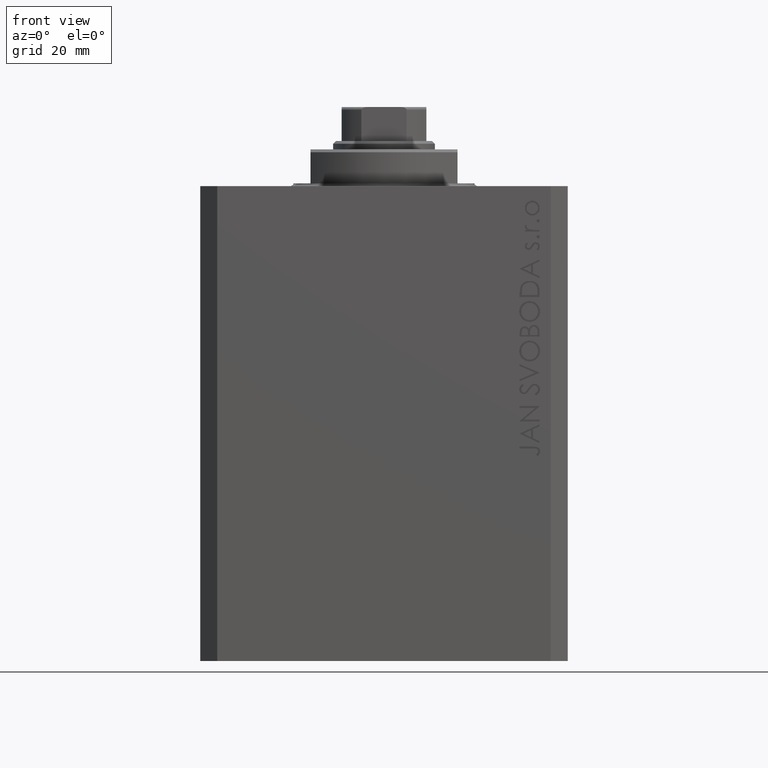
[diagram: clean part render]
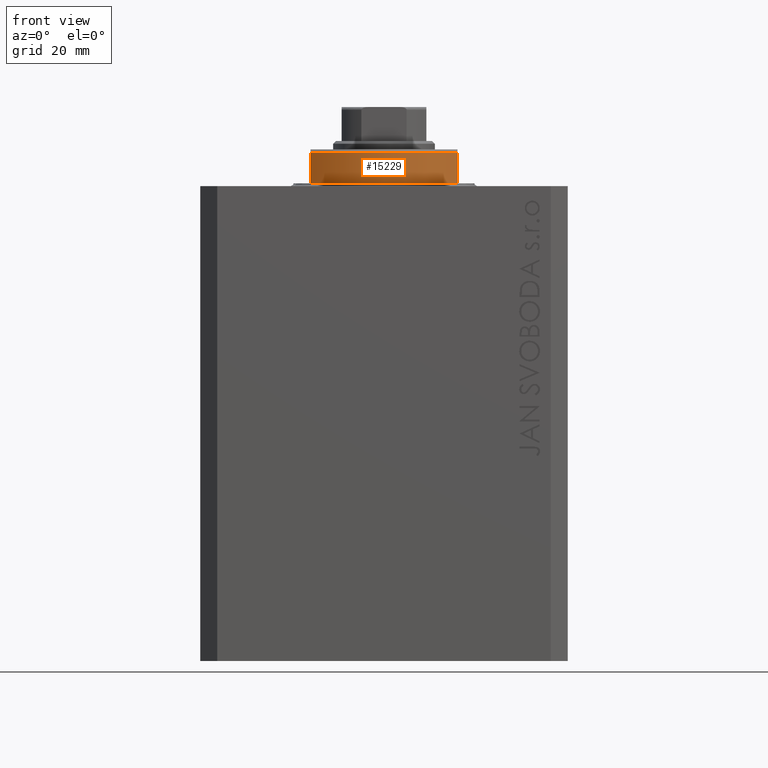
[diagram: same view with one face highlighted and labeled with its STEP entity id]
A machine part, front view. The second image highlights one B-rep face of the part: STEP entity #15229.
In plain terms, the highlighted cylindrical surface (partial cylindrical patch) has radius 16 mm, axis along (0, 0, -1).
Its self-contained STEP definition (entity closure, byte-faithful):
#2148 = CARTESIAN_POINT ( 'NONE',  ( -13.00000000000000000, -9.327379053088815652, -6.000000000000023981 ) ) ;
#5350 = ORIENTED_EDGE ( 'NONE', *, *, #15858, .T. ) ;
#6260 = VECTOR ( 'NONE', #41295, 1000.000000000000000 ) ;
#8850 = CARTESIAN_POINT ( 'NONE',  ( -13.00000000000000000, -9.327379053088813876, -6.500000000000000000 ) ) ;
#11063 = DIRECTION ( 'NONE',  ( -0.000000000000000000, -0.000000000000000000, -1.000000000000000000 ) ) ;
#12713 = AXIS2_PLACEMENT_3D ( 'NONE', #46067, #27938, #42474 ) ;
#13092 = CARTESIAN_POINT ( 'NONE',  ( 0.000000000000000000, 0.000000000000000000, -6.000000000000023981 ) ) ;
#15229 = ADVANCED_FACE ( 'NONE', ( #31510 ), #20773, .T. ) ;
#15259 = CARTESIAN_POINT ( 'NONE',  ( 13.00000000000000000, -9.327379053088813876, -6.500000000000000000 ) ) ;
#15858 = EDGE_CURVE ( 'NONE', #21203, #26072, #43954, .T. ) ;
#17312 = EDGE_CURVE ( 'NONE', #21203, #18910, #21441, .T. ) ;
#18099 = VECTOR ( 'NONE', #37202, 1000.000000000000000 ) ;
#18487 = EDGE_CURVE ( 'NONE', #30649, #18910, #34130, .T. ) ;
#18910 = VERTEX_POINT ( 'NONE', #29218 ) ;
#20773 = CYLINDRICAL_SURFACE ( 'NONE', #12713, 16.00000000000000000 ) ;
#21203 = VERTEX_POINT ( 'NONE', #35032 ) ;
#21441 = LINE ( 'NONE', #15259, #18099 ) ;
#26072 = VERTEX_POINT ( 'NONE', #41934 ) ;
#27402 = DIRECTION ( 'NONE',  ( 0.000000000000000000, 0.000000000000000000, 1.000000000000000000 ) ) ;
#27938 = DIRECTION ( 'NONE',  ( -0.000000000000000000, -0.000000000000000000, 1.000000000000000000 ) ) ;
#29218 = CARTESIAN_POINT ( 'NONE',  ( 13.00000000000000000, -9.327379053088815652, -6.000000000000023981 ) ) ;
#29416 = CARTESIAN_POINT ( 'NONE',  ( 0.000000000000000000, 0.000000000000000000, -0.4999999999999995559 ) ) ;
#30425 = ORIENTED_EDGE ( 'NONE', *, *, #33906, .T. ) ;
#30649 = VERTEX_POINT ( 'NONE', #2148 ) ;
#31510 = FACE_OUTER_BOUND ( 'NONE', #40103, .T. ) ;
#33484 = DIRECTION ( 'NONE',  ( 1.000000000000000000, 0.000000000000000000, 0.000000000000000000 ) ) ;
#33906 = EDGE_CURVE ( 'NONE', #26072, #30649, #37488, .T. ) ;
#34130 = CIRCLE ( 'NONE', #40997, 16.00000000000000000 ) ;
#35032 = CARTESIAN_POINT ( 'NONE',  ( 13.00000000000000000, -9.327379053088815652, -0.4999999999999995559 ) ) ;
#36090 = ORIENTED_EDGE ( 'NONE', *, *, #18487, .T. ) ;
#37202 = DIRECTION ( 'NONE',  ( 0.000000000000000000, 0.000000000000000000, -1.000000000000000000 ) ) ;
#37488 = LINE ( 'NONE', #8850, #6260 ) ;
#38591 = AXIS2_PLACEMENT_3D ( 'NONE', #29416, #11063, #33484 ) ;
#40103 = EDGE_LOOP ( 'NONE', ( #45291, #5350, #30425, #36090 ) ) ;
#40997 = AXIS2_PLACEMENT_3D ( 'NONE', #13092, #27402, #42630 ) ;
#41295 = DIRECTION ( 'NONE',  ( 0.000000000000000000, 0.000000000000000000, -1.000000000000000000 ) ) ;
#41934 = CARTESIAN_POINT ( 'NONE',  ( -13.00000000000000000, -9.327379053088815652, -0.4999999999999995559 ) ) ;
#42474 = DIRECTION ( 'NONE',  ( 1.000000000000000000, 0.000000000000000000, 0.000000000000000000 ) ) ;
#42630 = DIRECTION ( 'NONE',  ( -1.000000000000000000, 0.000000000000000000, 0.000000000000000000 ) ) ;
#43954 = CIRCLE ( 'NONE', #38591, 16.00000000000000000 ) ;
#45291 = ORIENTED_EDGE ( 'NONE', *, *, #17312, .F. ) ;
#46067 = CARTESIAN_POINT ( 'NONE',  ( 0.000000000000000000, 0.000000000000000000, -6.500000000000000000 ) ) ;